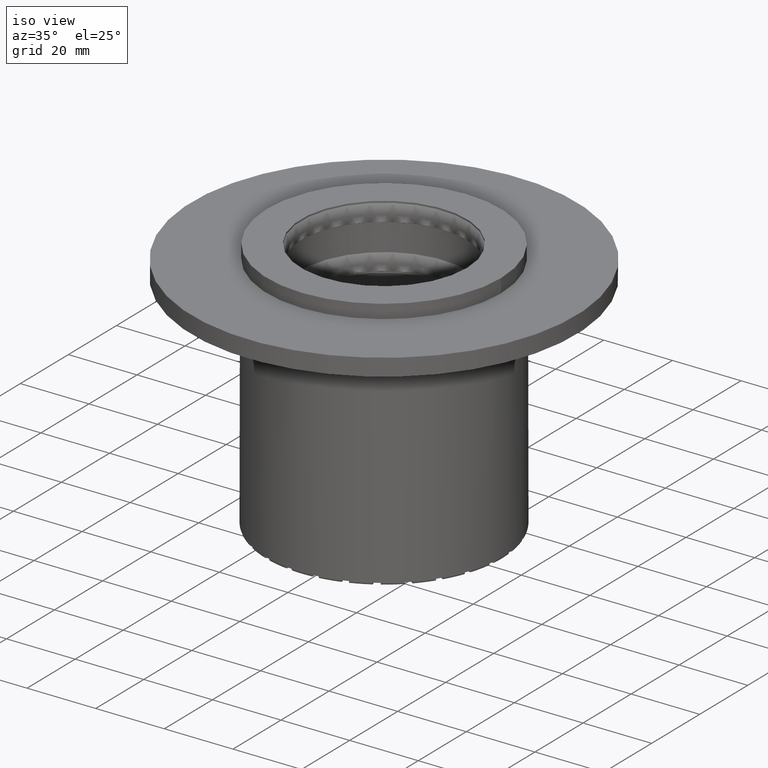
[diagram: clean part render]
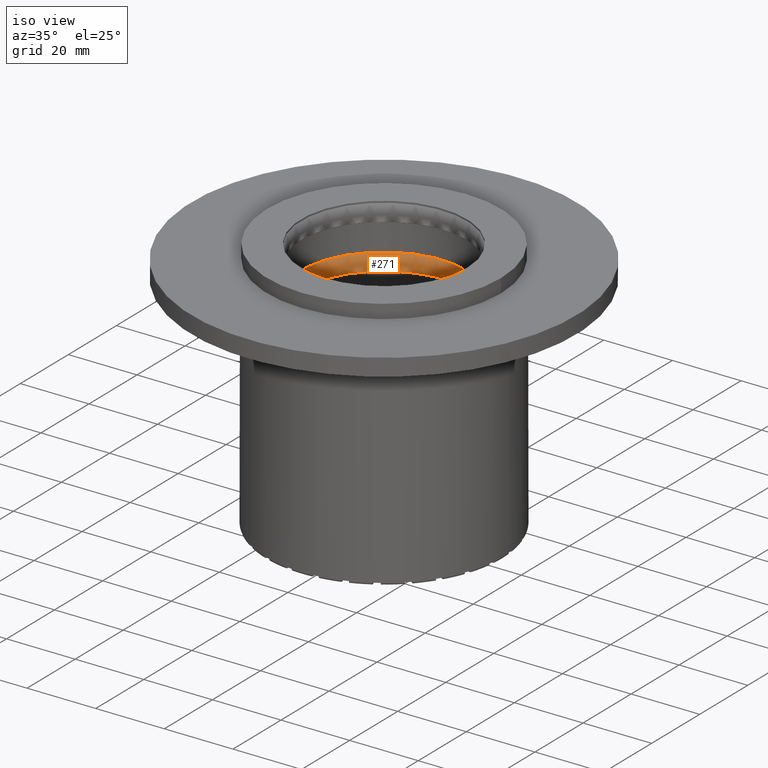
[diagram: same view with one face highlighted and labeled with its STEP entity id]
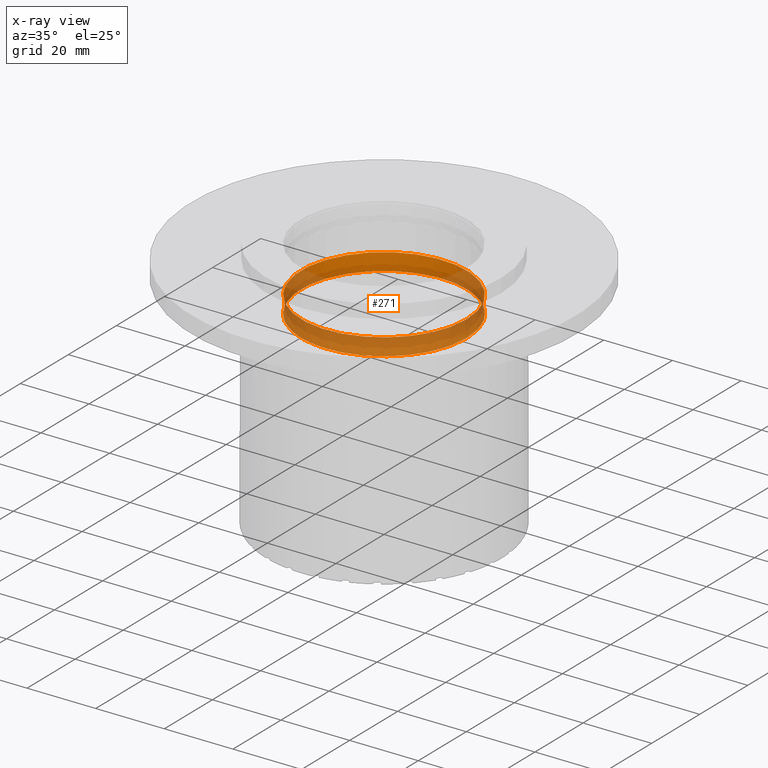
[diagram: x-ray of the same camera — body ghosted, the highlighted face saturated]
A machine part, iso view. The second image highlights one B-rep face of the part: STEP entity #271.
The next image is the same camera in x-ray: the body ghosted, the highlighted face saturated — about 65% of this face is hidden behind the body in this view.
In plain terms, the highlighted face is a SurfaceOfRevolution surface.
Its self-contained STEP definition (entity closure, byte-faithful):
#234=CARTESIAN_POINT('',(24.150000000000006,-2.820810E-014,57.299999999999983));
#235=DIRECTION('',(0.0,-1.0,0.0));
#236=DIRECTION('',(0.0,0.0,1.0));
#237=AXIS2_PLACEMENT_3D('',#234,#235,#236);
#238=ELLIPSE('',#237,2.5,0.5);
#239=CARTESIAN_POINT('',(4.633465E-015,-2.804680E-014,54.803074999999986));
#240=DIRECTION('',(1.204647E-016,-6.460021E-017,1.0));
#241=AXIS1_PLACEMENT('',#239,#240);
#242=SURFACE_OF_REVOLUTION('',#238,#241);
#243=CARTESIAN_POINT('',(24.150000000000006,-2.804660E-014,54.799999999999983));
#244=VERTEX_POINT('',#243);
#245=CARTESIAN_POINT('',(24.150000000000009,-2.836960E-014,59.799999999999983));
#246=VERTEX_POINT('',#245);
#247=CARTESIAN_POINT('',(24.150000000000006,-2.820810E-014,57.299999999999983));
#248=DIRECTION('',(0.0,1.0,0.0));
#249=DIRECTION('',(0.0,0.0,1.0));
#250=AXIS2_PLACEMENT_3D('',#247,#248,#249);
#251=ELLIPSE('',#250,2.5,0.5);
#252=EDGE_CURVE('',#244,#246,#251,.T.);
#253=ORIENTED_EDGE('',*,*,#252,.T.);
#254=CARTESIAN_POINT('',(5.235418E-015,-2.836960E-014,59.799999999999983));
#255=DIRECTION('',(0.0,0.0,-1.0));
#256=DIRECTION('',(1.0,0.0,0.0));
#257=AXIS2_PLACEMENT_3D('',#254,#255,#256);
#258=CIRCLE('',#257,24.149999999999999);
#259=EDGE_CURVE('',#246,#246,#258,.T.);
#260=ORIENTED_EDGE('',*,*,#259,.F.);
#261=ORIENTED_EDGE('',*,*,#252,.F.);
#262=CARTESIAN_POINT('',(4.633094E-015,-2.804660E-014,54.799999999999983));
#263=DIRECTION('',(0.0,0.0,1.0));
#264=DIRECTION('',(1.0,0.0,0.0));
#265=AXIS2_PLACEMENT_3D('',#262,#263,#264);
#266=CIRCLE('',#265,24.149999999999999);
#267=EDGE_CURVE('',#244,#244,#266,.T.);
#268=ORIENTED_EDGE('',*,*,#267,.F.);
#269=EDGE_LOOP('',(#253,#260,#261,#268));
#270=FACE_OUTER_BOUND('',#269,.T.);
#271=ADVANCED_FACE('',(#270),#242,.T.);